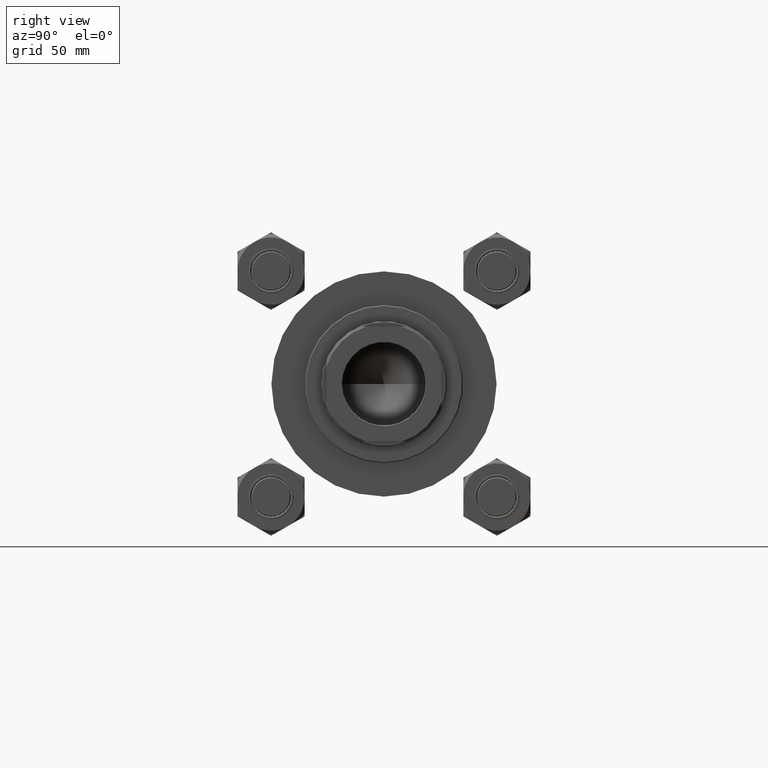
[diagram: clean part render]
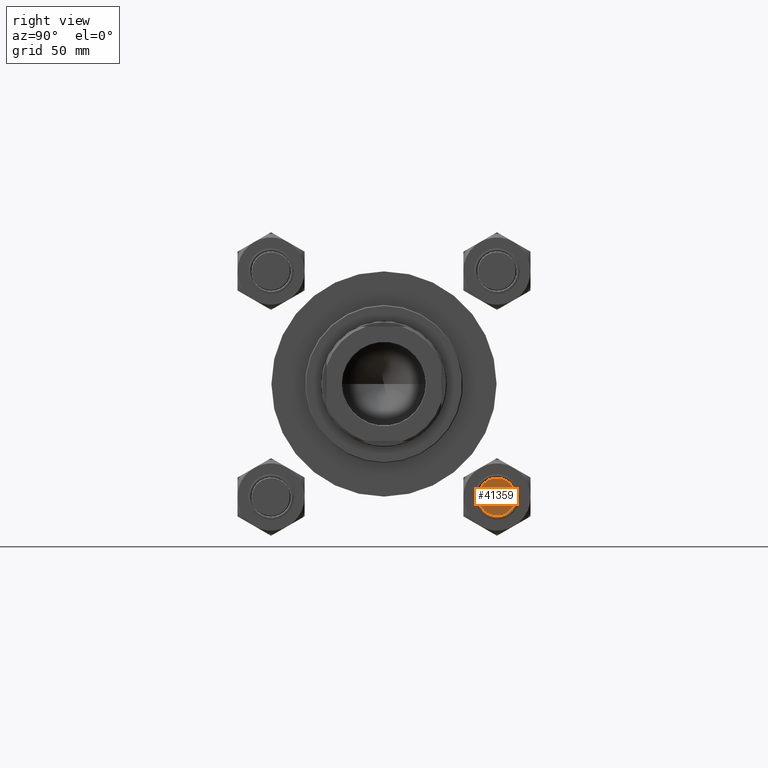
[diagram: same view with one face highlighted and labeled with its STEP entity id]
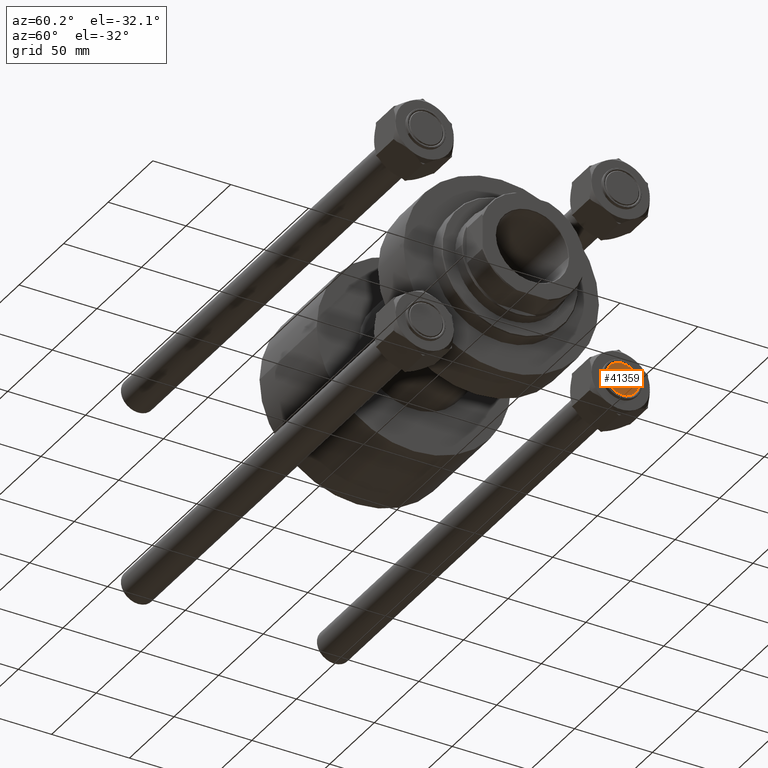
[diagram: same view with one face highlighted and labeled with its STEP entity id]
A machine part, right view. The second image highlights one B-rep face of the part: STEP entity #41359.
A second angle (auxiliary view) of the same face is appended — the face is thin or edge-on in the first view.
In plain terms, the highlighted planar face has unit normal (-1, -0, 0).
Its self-contained STEP definition (entity closure, byte-faithful):
#212 = EDGE_CURVE ( 'NONE', #3396, #49124, #30812, .T. ) ;
#3396 = VERTEX_POINT ( 'NONE', #34123 ) ;
#3952 = PLANE ( 'NONE',  #9099 ) ;
#4448 = CARTESIAN_POINT ( 'NONE',  ( 0.000000000000000000, 0.000000000000000000, 0.000000000000000000 ) ) ;
#5615 = CIRCLE ( 'NONE', #26768, 10.49999999999998224 ) ;
#9099 = AXIS2_PLACEMENT_3D ( 'NONE', #4448, #39301, #12083 ) ;
#12083 = DIRECTION ( 'NONE',  ( 1.000000000000000000, 0.000000000000000000, -0.000000000000000000 ) ) ;
#13691 = DIRECTION ( 'NONE',  ( -0.000000000000000000, -0.000000000000000000, -1.000000000000000000 ) ) ;
#18613 = AXIS2_PLACEMENT_3D ( 'NONE', #22931, #49851, #46781 ) ;
#19128 = ORIENTED_EDGE ( 'NONE', *, *, #46476, .T. ) ;
#20776 = ORIENTED_EDGE ( 'NONE', *, *, #212, .T. ) ;
#22931 = CARTESIAN_POINT ( 'NONE',  ( 0.000000000000000000, 0.000000000000000000, 0.000000000000000000 ) ) ;
#25097 = EDGE_LOOP ( 'NONE', ( #19128, #20776 ) ) ;
#26768 = AXIS2_PLACEMENT_3D ( 'NONE', #44207, #13691, #29218 ) ;
#26859 = FACE_OUTER_BOUND ( 'NONE', #25097, .T. ) ;
#29218 = DIRECTION ( 'NONE',  ( 1.000000000000000000, 0.000000000000000000, 0.000000000000000000 ) ) ;
#30812 = CIRCLE ( 'NONE', #18613, 10.49999999999998224 ) ;
#32389 = CARTESIAN_POINT ( 'NONE',  ( 10.49999999999998224, 0.000000000000000000, 0.000000000000000000 ) ) ;
#34123 = CARTESIAN_POINT ( 'NONE',  ( -10.49999999999998224, 1.316495309083403434E-15, 0.000000000000000000 ) ) ;
#39301 = DIRECTION ( 'NONE',  ( 0.000000000000000000, 0.000000000000000000, 1.000000000000000000 ) ) ;
#41359 = ADVANCED_FACE ( 'NONE', ( #26859 ), #3952, .F. ) ;
#44207 = CARTESIAN_POINT ( 'NONE',  ( 0.000000000000000000, 0.000000000000000000, 0.000000000000000000 ) ) ;
#46476 = EDGE_CURVE ( 'NONE', #49124, #3396, #5615, .T. ) ;
#46781 = DIRECTION ( 'NONE',  ( 1.000000000000000000, 0.000000000000000000, 0.000000000000000000 ) ) ;
#49124 = VERTEX_POINT ( 'NONE', #32389 ) ;
#49851 = DIRECTION ( 'NONE',  ( -0.000000000000000000, -0.000000000000000000, -1.000000000000000000 ) ) ;